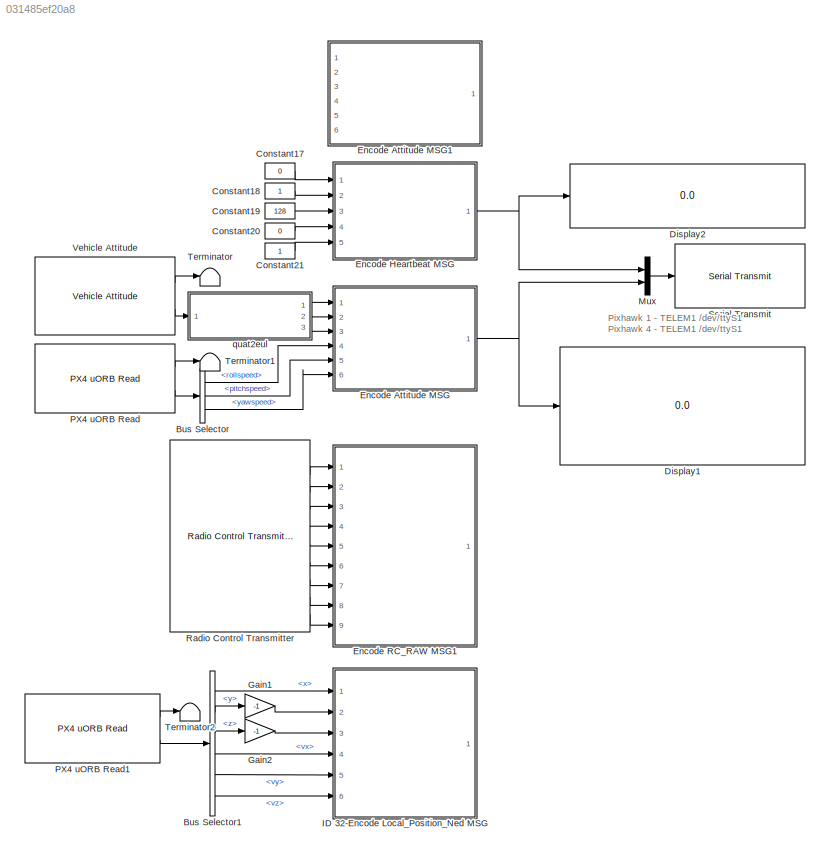
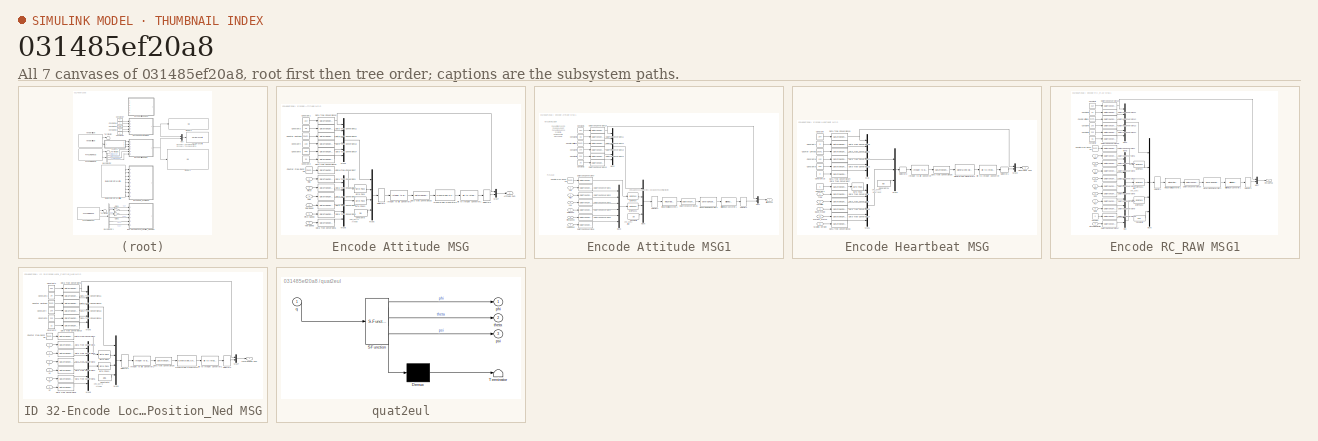
[diagram: thumbnail index - all 7 canvases of the model, root first then tree order]
MODEL slx_031485ef20a8
KIND model
CONFIG AbsTol = auto
CONFIG EnableMultiTasking = on
CONFIG FixedStep = 0.01
CONFIG MaxStep = auto
CONFIG MinStep = auto
CONFIG RelTol = 1e-3
CONFIG SampleTimeConstraint = Unconstrained
CONFIG Solver = FixedStepAuto
CONFIG SolverName = FixedStepAuto
CONFIG StartTime = 0.0
CONFIG StopTime = inf
BLOCK [BusSelector] Bus Selector
  OutputAsBus = off
  OutputSignals = rollspeed,pitchspeed,yawspeed
  Ports = [1, 3]
BLOCK [BusSelector] Bus Selector1
  OutputAsBus = off
  OutputSignals = x,y,z,vx,vy,vz
  Ports = [1, 6]
BLOCK [Constant] Constant17
  Value = 0
BLOCK [Constant] Constant18
BLOCK [Constant] Constant19
  Value = 128
BLOCK [Constant] Constant20
  Value = 0
BLOCK [Constant] Constant21
BLOCK [Display] Display1
  Decimation = 1
  Ports = [1]
BLOCK [Display] Display2
  Decimation = 1
  Ports = [1]
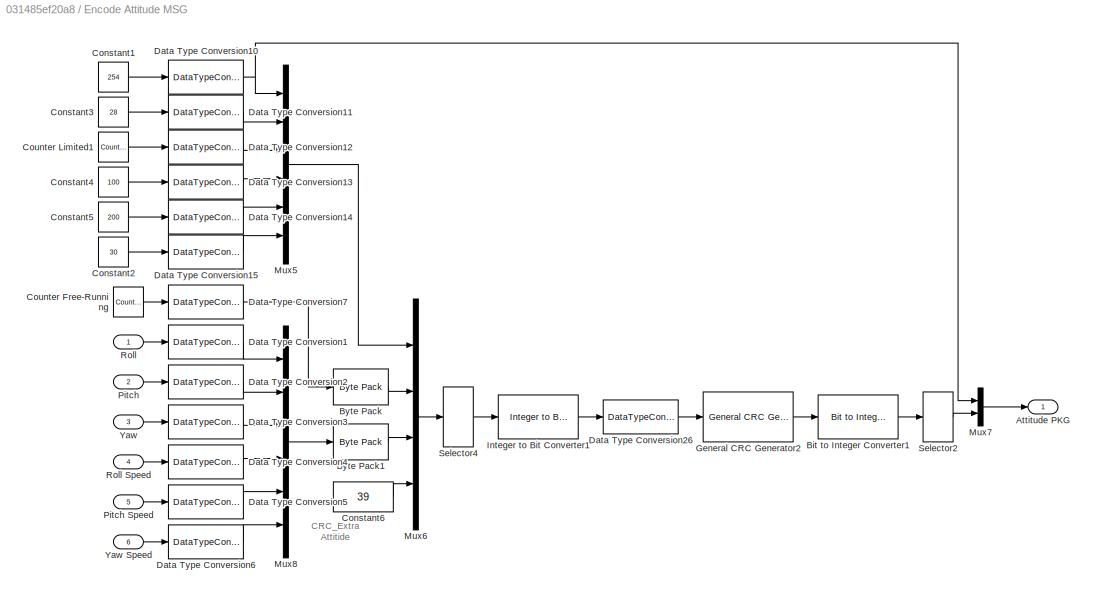
BLOCK [SubSystem] Encode Attitude MSG
  Ports = [6, 1]
  RequestExecContextInheritance = off
BLOCK [Outport] Encode Attitude MSG/Attitude PKG
  IconDisplay = Port number
  VectorParamsAs1DForOutWhenUnconnected = off
BLOCK [Reference] Encode Attitude MSG/Bit to Integer Converter1  REF=commutil2/Bit to Integer
Converter
  Ports = [1, 1]
  SourceBlock = commutil2/Bit to Integer\nConverter
  SourceProductBaseCode = CM
  SourceProductName = Communications Toolbox
  SourceType = Bit to Integer Converter
BLOCK [Reference] Encode Attitude MSG/Byte Pack  REF=etargetslib/Byte Pack
  Ports = [1, 1]
  SourceBlock = etargetslib/Byte Pack
  SourceProductBaseCode = ME
  SourceProductName = MATLAB Coder
  SourceType = Byte pack
BLOCK [Reference] Encode Attitude MSG/Byte Pack1  REF=etargetslib/Byte Pack
  Ports = [1, 1]
  SourceBlock = etargetslib/Byte Pack
  SourceProductBaseCode = ME
  SourceProductName = MATLAB Coder
  SourceType = Byte pack
BLOCK [Constant] Encode Attitude MSG/Constant1
  Value = 254
BLOCK [Constant] Encode Attitude MSG/Constant2
  Value = 30
BLOCK [Constant] Encode Attitude MSG/Constant3
  Value = 28
BLOCK [Constant] Encode Attitude MSG/Constant4
  Value = 100
BLOCK [Constant] Encode Attitude MSG/Constant5
  Value = 200
BLOCK [Constant] Encode Attitude MSG/Constant6
  OutDataTypeStr = uint8
  Value = 39
BLOCK [Reference] Encode Attitude MSG/Counter Free-Running  REF=simulink/Sources/Counter
Free-Running
  Ports = [0, 1]
  SourceBlock = simulink/Sources/Counter\nFree-Running
  SourceProductBaseCode = SL
  SourceProductName = Simulink
  SourceType = Counter Free-Running
BLOCK [Reference] Encode Attitude MSG/Counter Limited1  REF=simulink/Sources/Counter
Limited
  Ports = [0, 1]
  SourceBlock = simulink/Sources/Counter\nLimited
  SourceProductBaseCode = SL
  SourceProductName = Simulink
  SourceType = Counter Limited
BLOCK [DataTypeConversion] Encode Attitude MSG/Data Type Conversion1
  OutDataTypeStr = single
  RndMeth = Floor
  SaturateOnIntegerOverflow = off
BLOCK [DataTypeConversion] Encode Attitude MSG/Data Type Conversion10
  OutDataTypeStr = uint8
  RndMeth = Floor
  SaturateOnIntegerOverflow = off
BLOCK [DataTypeConversion] Encode Attitude MSG/Data Type Conversion11
  OutDataTypeStr = uint8
  RndMeth = Floor
  SaturateOnIntegerOverflow = off
BLOCK [DataTypeConversion] Encode Attitude MSG/Data Type Conversion12
  OutDataTypeStr = uint8
  RndMeth = Floor
  SaturateOnIntegerOverflow = off
BLOCK [DataTypeConversion] Encode Attitude MSG/Data Type Conversion13
  OutDataTypeStr = uint8
  RndMeth = Floor
  SaturateOnIntegerOverflow = off
BLOCK [DataTypeConversion] Encode Attitude MSG/Data Type Conversion14
  OutDataTypeStr = uint8
  RndMeth = Floor
  SaturateOnIntegerOverflow = off
BLOCK [DataTypeConversion] Encode Attitude MSG/Data Type Conversion15
  OutDataTypeStr = uint8
  RndMeth = Floor
  SaturateOnIntegerOverflow = off
BLOCK [DataTypeConversion] Encode Attitude MSG/Data Type Conversion2
  OutDataTypeStr = single
  RndMeth = Floor
  SaturateOnIntegerOverflow = off
BLOCK [DataTypeConversion] Encode Attitude MSG/Data Type Conversion26
  OutDataTypeStr = boolean
  RndMeth = Floor
  SaturateOnIntegerOverflow = off
BLOCK [DataTypeConversion] Encode Attitude MSG/Data Type Conversion3
  OutDataTypeStr = single
  RndMeth = Floor
  SaturateOnIntegerOverflow = off
BLOCK [DataTypeConversion] Encode Attitude MSG/Data Type Conversion4
  OutDataTypeStr = single
  RndMeth = Floor
  SaturateOnIntegerOverflow = off
BLOCK [DataTypeConversion] Encode Attitude MSG/Data Type Conversion5
  OutDataTypeStr = single
  RndMeth = Floor
  SaturateOnIntegerOverflow = off
BLOCK [DataTypeConversion] Encode Attitude MSG/Data Type Conversion6
  OutDataTypeStr = single
  RndMeth = Floor
  SaturateOnIntegerOverflow = off
BLOCK [DataTypeConversion] Encode Attitude MSG/Data Type Conversion7
  OutDataTypeStr = uint32
  RndMeth = Floor
  SaturateOnIntegerOverflow = off
BLOCK [Reference] Encode Attitude MSG/General CRC Generator2  REF=commcrc2/General CRC
Generator
  Ports = [1, 1]
  SourceBlock = commcrc2/General CRC\nGenerator
  SourceProductBaseCode = CM
  SourceProductName = Communications Toolbox
  SourceType = General CRC Generator
BLOCK [Reference] Encode Attitude MSG/Integer to Bit Converter1  REF=commutil2/Integer to Bit
Converter
  Ports = [1, 1]
  SourceBlock = commutil2/Integer to Bit\nConverter
  SourceProductBaseCode = CM
  SourceProductName = Communications Toolbox
  SourceType = Integer to Bit Converter
BLOCK [Mux] Encode Attitude MSG/Mux5
  DisplayOption = bar
  Inputs = 6
  Ports = [6, 1]
BLOCK [Mux] Encode Attitude MSG/Mux6
  DisplayOption = bar
  Ports = [4, 1]
BLOCK [Mux] Encode Attitude MSG/Mux7
  DisplayOption = bar
  Inputs = 2
  Ports = [2, 1]
BLOCK [Mux] Encode Attitude MSG/Mux8
  DisplayOption = bar
  Inputs = 6
  Ports = [6, 1]
BLOCK [Inport] Encode Attitude MSG/Pitch
  IconDisplay = Port number
  Port = 2
BLOCK [Inport] Encode Attitude MSG/Pitch Speed
  IconDisplay = Port number
  Port = 5
BLOCK [Inport] Encode Attitude MSG/Roll
  IconDisplay = Port number
BLOCK [Inport] Encode Attitude MSG/Roll Speed
  IconDisplay = Port number
  Port = 4
BLOCK [Selector] Encode Attitude MSG/Selector2
  IndexOptions = Index vector (dialog)
  Indices = [1:33 36 35]
  InputPortWidth = 36
  OutputSizes = 1
  Ports = [1, 1]
BLOCK [Selector] Encode Attitude MSG/Selector4
  IndexOptions = Index vector (dialog)
  Indices = [2:35]
  InputPortWidth = 35
  OutputSizes = 1
  Ports = [1, 1]
BLOCK [Inport] Encode Attitude MSG/Yaw
  IconDisplay = Port number
  Port = 3
BLOCK [Inport] Encode Attitude MSG/Yaw Speed
  IconDisplay = Port number
  Port = 6
BLOCK [SubSystem] Encode Attitude MSG1
  Commented = on
  Ports = [6, 1]
  RequestExecContextInheritance = off
BLOCK [Outport] Encode Attitude MSG1/Attitude PKG
  IconDisplay = Port number
  VectorParamsAs1DForOutWhenUnconnected = off
BLOCK [Reference] Encode Attitude MSG1/Bit to Integer Converter1  REF=commutil2/Bit to Integer
Converter
  Ports = [1, 1]
  SourceBlock = commutil2/Bit to Integer\nConverter
  SourceProductBaseCode = CM
  SourceProductName = Communications Toolbox
  SourceType = Bit to Integer Converter
BLOCK [Reference] Encode Attitude MSG1/Byte Pack  REF=etargetslib/Byte Pack
  Ports = [1, 1]
  SourceBlock = etargetslib/Byte Pack
  SourceProductBaseCode = ME
  SourceProductName = MATLAB Coder
  SourceType = Byte pack
BLOCK [Reference] Encode Attitude MSG1/Byte Pack1  REF=etargetslib/Byte Pack
  Ports = [1, 1]
  SourceBlock = etargetslib/Byte Pack
  SourceProductBaseCode = ME
  SourceProductName = MATLAB Coder
  SourceType = Byte pack
BLOCK [Constant] Encode Attitude MSG1/Constant1
  Value = 254
BLOCK [Constant] Encode Attitude MSG1/Constant2
  Value = 30
BLOCK [Constant] Encode Attitude MSG1/Constant3
  Value = 28
BLOCK [Constant] Encode Attitude MSG1/Constant4
  Value = 100
BLOCK [Constant] Encode Attitude MSG1/Constant5
  Value = 200
BLOCK [Constant] Encode Attitude MSG1/Constant6
  OutDataTypeStr = uint8
  Value = 39
BLOCK [Reference] Encode Attitude MSG1/Counter Free-Running  REF=simulink/Sources/Counter
Free-Running
  Ports = [0, 1]
  SourceBlock = simulink/Sources/Counter\nFree-Running
  SourceProductBaseCode = SL
  SourceProductName = Simulink
  SourceType = Counter Free-Running
BLOCK [Reference] Encode Attitude MSG1/Counter Limited1  REF=simulink/Sources/Counter
Limited
  Ports = [0, 1]
  SourceBlock = simulink/Sources/Counter\nLimited
  SourceProductBaseCode = SL
  SourceProductName = Simulink
  SourceType = Counter Limited
BLOCK [DataTypeConversion] Encode Attitude MSG1/Data Type Conversion1
  OutDataTypeStr = single
  RndMeth = Floor
  SaturateOnIntegerOverflow = off
BLOCK [DataTypeConversion] Encode Attitude MSG1/Data Type Conversion10
  OutDataTypeStr = uint8
  RndMeth = Floor
  SaturateOnIntegerOverflow = off
BLOCK [DataTypeConversion] Encode Attitude MSG1/Data Type Conversion11
  OutDataTypeStr = uint8
  RndMeth = Floor
  SaturateOnIntegerOverflow = off
BLOCK [DataTypeConversion] Encode Attitude MSG1/Data Type Conversion12
  OutDataTypeStr = uint8
  RndMeth = Floor
  SaturateOnIntegerOverflow = off
BLOCK [DataTypeConversion] Encode Attitude MSG1/Data Type Conversion13
  OutDataTypeStr = uint8
  RndMeth = Floor
  SaturateOnIntegerOverflow = off
BLOCK [DataTypeConversion] Encode Attitude MSG1/Data Type Conversion14
  OutDataTypeStr = uint8
  RndMeth = Floor
  SaturateOnIntegerOverflow = off
BLOCK [DataTypeConversion] Encode Attitude MSG1/Data Type Conversion15
  OutDataTypeStr = uint8
  RndMeth = Floor
  SaturateOnIntegerOverflow = off
BLOCK [DataTypeConversion] Encode Attitude MSG1/Data Type Conversion2
  OutDataTypeStr = single
  RndMeth = Floor
  SaturateOnIntegerOverflow = off
BLOCK [DataTypeConversion] Encode Attitude MSG1/Data Type Conversion26
  OutDataTypeStr = boolean
  RndMeth = Floor
  SaturateOnIntegerOverflow = off
BLOCK [DataTypeConversion] Encode Attitude MSG1/Data Type Conversion3
  OutDataTypeStr = single
  RndMeth = Floor
  SaturateOnIntegerOverflow = off
BLOCK [DataTypeConversion] Encode Attitude MSG1/Data Type Conversion4
  OutDataTypeStr = single
  RndMeth = Floor
  SaturateOnIntegerOverflow = off
BLOCK [DataTypeConversion] Encode Attitude MSG1/Data Type Conversion5
  OutDataTypeStr = single
  RndMeth = Floor
  SaturateOnIntegerOverflow = off
BLOCK [DataTypeConversion] Encode Attitude MSG1/Data Type Conversion6
  OutDataTypeStr = single
  RndMeth = Floor
  SaturateOnIntegerOverflow = off
BLOCK [DataTypeConversion] Encode Attitude MSG1/Data Type Conversion7
  OutDataTypeStr = uint32
  RndMeth = Floor
  SaturateOnIntegerOverflow = off
BLOCK [Reference] Encode Attitude MSG1/General CRC Generator2  REF=commcrc2/General CRC
Generator
  Ports = [1, 1]
  SourceBlock = commcrc2/General CRC\nGenerator
  SourceProductBaseCode = CM
  SourceProductName = Communications Toolbox
  SourceType = General CRC Generator
BLOCK [Reference] Encode Attitude MSG1/Integer to Bit Converter1  REF=commutil2/Integer to Bit
Converter
  Ports = [1, 1]
  SourceBlock = commutil2/Integer to Bit\nConverter
  SourceProductBaseCode = CM
  SourceProductName = Communications Toolbox
  SourceType = Integer to Bit Converter
BLOCK [Mux] Encode Attitude MSG1/Mux5
  DisplayOption = bar
  Inputs = 6
  Ports = [6, 1]
BLOCK [Mux] Encode Attitude MSG1/Mux6
  DisplayOption = bar
  Ports = [4, 1]
BLOCK [Mux] Encode Attitude MSG1/Mux7
  DisplayOption = bar
  Inputs = 2
  Ports = [2, 1]
BLOCK [Mux] Encode Attitude MSG1/Mux8
  DisplayOption = bar
  Inputs = 6
  Ports = [6, 1]
BLOCK [Inport] Encode Attitude MSG1/Pitch
  IconDisplay = Port number
  Port = 2
BLOCK [Inport] Encode Attitude MSG1/Pitch Speed
  IconDisplay = Port number
  Port = 5
BLOCK [Inport] Encode Attitude MSG1/Roll
  IconDisplay = Port number
BLOCK [Inport] Encode Attitude MSG1/Roll Speed
  IconDisplay = Port number
  Port = 4
BLOCK [Selector] Encode Attitude MSG1/Selector2
  IndexOptions = Index vector (dialog)
  Indices = [1:33 36 35]
  InputPortWidth = 36
  OutputSizes = 1
  Ports = [1, 1]
BLOCK [Selector] Encode Attitude MSG1/Selector4
  IndexOptions = Index vector (dialog)
  Indices = [2:35]
  InputPortWidth = 35
  OutputSizes = 1
  Ports = [1, 1]
BLOCK [Inport] Encode Attitude MSG1/Yaw
  IconDisplay = Port number
  Port = 3
BLOCK [Inport] Encode Attitude MSG1/Yaw Speed
  IconDisplay = Port number
  Port = 6
BLOCK [SubSystem] Encode Heartbeat MSG
  Ports = [5, 1]
  RequestExecContextInheritance = off
BLOCK [Inport] Encode Heartbeat MSG/Autopilot
  IconDisplay = Port number
  Port = 2
BLOCK [Inport] Encode Heartbeat MSG/Base_mode
  IconDisplay = Port number
  Port = 3
BLOCK [Reference] Encode Heartbeat MSG/Bit to Integer Converter  REF=commutil2/Bit to Integer
Converter
  Ports = [1, 1]
  SourceBlock = commutil2/Bit to Integer\nConverter
  SourceProductBaseCode = CM
  SourceProductName = Communications Toolbox
  SourceType = Bit to Integer Converter
BLOCK [Reference] Encode Heartbeat MSG/Byte Pack  REF=etargetslib/Byte Pack
  Ports = [1, 1]
  SourceBlock = etargetslib/Byte Pack
  SourceProductBaseCode = ME
  SourceProductName = MATLAB Coder
  SourceType = Byte pack
BLOCK [Constant] Encode Heartbeat MSG/Constant
  Value = 254
BLOCK [Constant] Encode Heartbeat MSG/Constant1
BLOCK [Constant] Encode Heartbeat MSG/Constant16
  Value = 0
BLOCK [Constant] Encode Heartbeat MSG/Constant24
  OutDataTypeStr = uint8
  Value = 50
BLOCK [Constant] Encode Heartbeat MSG/Constant7
  Value = 9
BLOCK [Constant] Encode Heartbeat MSG/Constant8
  Value = 100
BLOCK [Constant] Encode Heartbeat MSG/Constant9
  Value = 200
BLOCK [Reference] Encode Heartbeat MSG/Counter Limited  REF=simulink/Sources/Counter
Limited
  Ports = [0, 1]
  SourceBlock = simulink/Sources/Counter\nLimited
  SourceProductBaseCode = SL
  SourceProductName = Simulink
  SourceType = Counter Limited
BLOCK [DataTypeConversion] Encode Heartbeat MSG/Data Type Conversion16
  OutDataTypeStr = uint8
  RndMeth = Floor
  SaturateOnIntegerOverflow = off
BLOCK [DataTypeConversion] Encode Heartbeat MSG/Data Type Conversion17
  OutDataTypeStr = uint8
  RndMeth = Floor
  SaturateOnIntegerOverflow = off
BLOCK [DataTypeConversion] Encode Heartbeat MSG/Data Type Conversion18
  OutDataTypeStr = uint8
  RndMeth = Floor
  SaturateOnIntegerOverflow = off
BLOCK [DataTypeConversion] Encode Heartbeat MSG/Data Type Conversion19
  OutDataTypeStr = uint8
  RndMeth = Floor
  SaturateOnIntegerOverflow = off
BLOCK [DataTypeConversion] Encode Heartbeat MSG/Data Type Conversion20
  OutDataTypeStr = uint8
  RndMeth = Floor
  SaturateOnIntegerOverflow = off
BLOCK [DataTypeConversion] Encode Heartbeat MSG/Data Type Conversion21
  OutDataTypeStr = uint8
  RndMeth = Floor
  SaturateOnIntegerOverflow = off
BLOCK [DataTypeConversion] Encode Heartbeat MSG/Data Type Conversion22
  OutDataTypeStr = uint8
  RndMeth = Floor
  SaturateOnIntegerOverflow = off
BLOCK [DataTypeConversion] Encode Heartbeat MSG/Data Type Conversion23
  OutDataTypeStr = uint8
  RndMeth = Floor
  SaturateOnIntegerOverflow = off
BLOCK [DataTypeConversion] Encode Heartbeat MSG/Data Type Conversion24
  OutDataTypeStr = uint8
  RndMeth = Floor
  SaturateOnIntegerOverflow = off
BLOCK [DataTypeConversion] Encode Heartbeat MSG/Data Type Conversion25
  OutDataTypeStr = boolean
  RndMeth = Floor
  SaturateOnIntegerOverflow = off
BLOCK [DataTypeConversion] Encode Heartbeat MSG/Data Type Conversion7
  OutDataTypeStr = uint32
  RndMeth = Floor
  SaturateOnIntegerOverflow = off
BLOCK [DataTypeConversion] Encode Heartbeat MSG/Data Type Conversion8
  OutDataTypeStr = uint8
  RndMeth = Floor
  SaturateOnIntegerOverflow = off
BLOCK [DataTypeConversion] Encode Heartbeat MSG/Data Type Conversion9
  OutDataTypeStr = uint8
  RndMeth = Floor
  SaturateOnIntegerOverflow = off
BLOCK [Reference] Encode Heartbeat MSG/General CRC Generator1  REF=commcrc2/General CRC
Generator
  Ports = [1, 1]
  SourceBlock = commcrc2/General CRC\nGenerator
  SourceProductBaseCode = CM
  SourceProductName = Communications Toolbox
  SourceType = General CRC Generator
BLOCK [Outport] Encode Heartbeat MSG/Heartbeat PKG
  IconDisplay = Port number
  VectorParamsAs1DForOutWhenUnconnected = off
BLOCK [Reference] Encode Heartbeat MSG/Integer to Bit Converter  REF=commutil2/Integer to Bit
Converter
  Ports = [1, 1]
  SourceBlock = commutil2/Integer to Bit\nConverter
  SourceProductBaseCode = CM
  SourceProductName = Communications Toolbox
  SourceType = Integer to Bit Converter
BLOCK [Inport] Encode Heartbeat MSG/Mavlink Version
  IconDisplay = Port number
  Port = 5
BLOCK [Mux] Encode Heartbeat MSG/Mux
  DisplayOption = bar
  Inputs = 6
  Ports = [6, 1]
BLOCK [Mux] Encode Heartbeat MSG/Mux1
  DisplayOption = bar
  Inputs = 6
  Ports = [6, 1]
BLOCK [Mux] Encode Heartbeat MSG/Mux2
  DisplayOption = bar
  Inputs = 3
  Ports = [3, 1]
BLOCK [Mux] Encode Heartbeat MSG/Mux3
  DisplayOption = bar
  Inputs = 2
  Ports = [2, 1]
BLOCK [Selector] Encode Heartbeat MSG/Selector1
  IndexOptions = Index vector (dialog)
  Indices = [1:14 17 16]
  InputPortWidth = 17
  OutputSizes = 1
  Ports = [1, 1]
BLOCK [Selector] Encode Heartbeat MSG/Selector3
  IndexOptions = Index vector (dialog)
  Indices = [2:16]
  InputPortWidth = 16
  OutputSizes = 1
  Ports = [1, 1]
BLOCK [Inport] Encode Heartbeat MSG/System_Status
  IconDisplay = Port number
  Port = 4
BLOCK [Inport] Encode Heartbeat MSG/Type
  IconDisplay = Port number
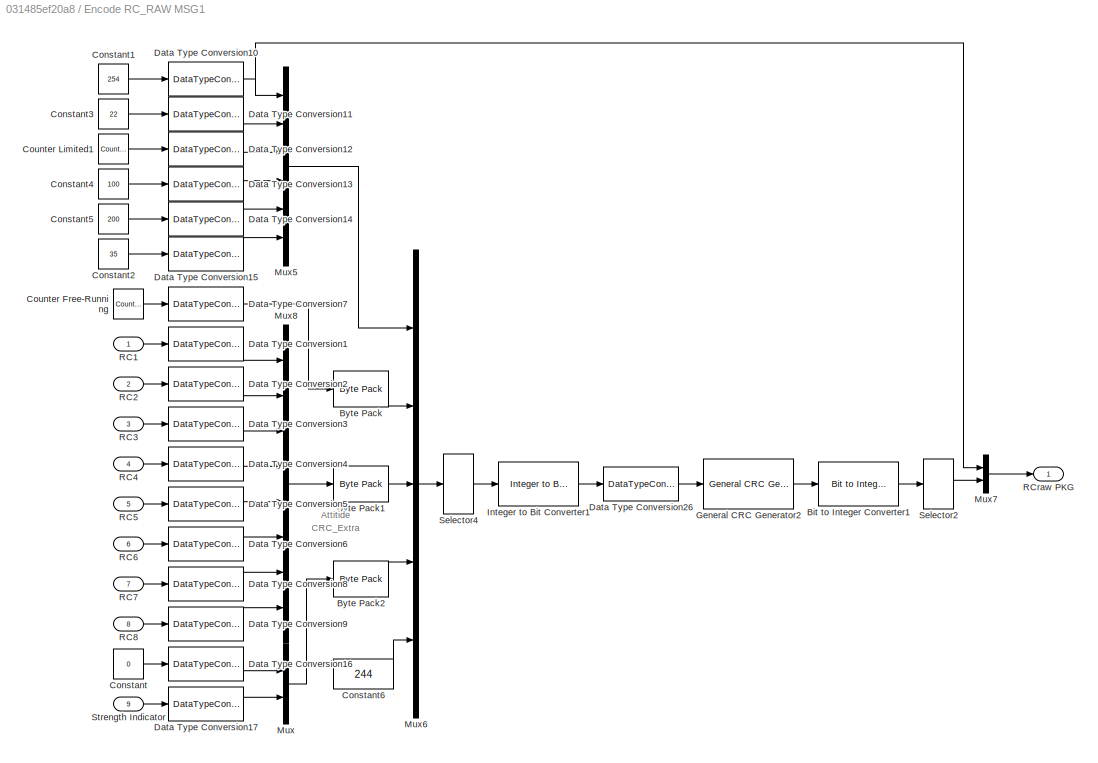
BLOCK [SubSystem] Encode RC_RAW MSG1
  Ports = [9, 1]
  RequestExecContextInheritance = off
BLOCK [Reference] Encode RC_RAW MSG1/Bit to Integer Converter1  REF=commutil2/Bit to Integer
Converter
  Ports = [1, 1]
  SourceBlock = commutil2/Bit to Integer\nConverter
  SourceProductBaseCode = CM
  SourceProductName = Communications Toolbox
  SourceType = Bit to Integer Converter
BLOCK [Reference] Encode RC_RAW MSG1/Byte Pack  REF=etargetslib/Byte Pack
  Ports = [1, 1]
  SourceBlock = etargetslib/Byte Pack
  SourceProductBaseCode = ME
  SourceProductName = MATLAB Coder
  SourceType = Byte pack
BLOCK [Reference] Encode RC_RAW MSG1/Byte Pack1  REF=etargetslib/Byte Pack
  Ports = [1, 1]
  SourceBlock = etargetslib/Byte Pack
  SourceProductBaseCode = ME
  SourceProductName = MATLAB Coder
  SourceType = Byte pack
BLOCK [Reference] Encode RC_RAW MSG1/Byte Pack2  REF=etargetslib/Byte Pack
  Ports = [1, 1]
  SourceBlock = etargetslib/Byte Pack
  SourceProductBaseCode = ME
  SourceProductName = MATLAB Coder
  SourceType = Byte pack
BLOCK [Constant] Encode RC_RAW MSG1/Constant
  Value = 0
BLOCK [Constant] Encode RC_RAW MSG1/Constant1
  Value = 254
BLOCK [Constant] Encode RC_RAW MSG1/Constant2
  Value = 35
BLOCK [Constant] Encode RC_RAW MSG1/Constant3
  Value = 22
BLOCK [Constant] Encode RC_RAW MSG1/Constant4
  Value = 100
BLOCK [Constant] Encode RC_RAW MSG1/Constant5
  Value = 200
BLOCK [Constant] Encode RC_RAW MSG1/Constant6
  OutDataTypeStr = uint8
  Value = 244
BLOCK [Reference] Encode RC_RAW MSG1/Counter Free-Running  REF=simulink/Sources/Counter
Free-Running
  Ports = [0, 1]
  SourceBlock = simulink/Sources/Counter\nFree-Running
  SourceProductBaseCode = SL
  SourceProductName = Simulink
  SourceType = Counter Free-Running
BLOCK [Reference] Encode RC_RAW MSG1/Counter Limited1  REF=simulink/Sources/Counter
Limited
  Ports = [0, 1]
  SourceBlock = simulink/Sources/Counter\nLimited
  SourceProductBaseCode = SL
  SourceProductName = Simulink
  SourceType = Counter Limited
BLOCK [DataTypeConversion] Encode RC_RAW MSG1/Data Type Conversion1
  OutDataTypeStr = uint16
  RndMeth = Floor
  SaturateOnIntegerOverflow = off
BLOCK [DataTypeConversion] Encode RC_RAW MSG1/Data Type Conversion10
  OutDataTypeStr = uint8
  RndMeth = Floor
  SaturateOnIntegerOverflow = off
BLOCK [DataTypeConversion] Encode RC_RAW MSG1/Data Type Conversion11
  OutDataTypeStr = uint8
  RndMeth = Floor
  SaturateOnIntegerOverflow = off
BLOCK [DataTypeConversion] Encode RC_RAW MSG1/Data Type Conversion12
  OutDataTypeStr = uint8
  RndMeth = Floor
  SaturateOnIntegerOverflow = off
BLOCK [DataTypeConversion] Encode RC_RAW MSG1/Data Type Conversion13
  OutDataTypeStr = uint8
  RndMeth = Floor
  SaturateOnIntegerOverflow = off
BLOCK [DataTypeConversion] Encode RC_RAW MSG1/Data Type Conversion14
  OutDataTypeStr = uint8
  RndMeth = Floor
  SaturateOnIntegerOverflow = off
BLOCK [DataTypeConversion] Encode RC_RAW MSG1/Data Type Conversion15
  OutDataTypeStr = uint8
  RndMeth = Floor
  SaturateOnIntegerOverflow = off
BLOCK [DataTypeConversion] Encode RC_RAW MSG1/Data Type Conversion16
  OutDataTypeStr = uint8
  RndMeth = Floor
  SaturateOnIntegerOverflow = off
BLOCK [DataTypeConversion] Encode RC_RAW MSG1/Data Type Conversion17
  OutDataTypeStr = uint8
  RndMeth = Floor
  SaturateOnIntegerOverflow = off
BLOCK [DataTypeConversion] Encode RC_RAW MSG1/Data Type Conversion2
  OutDataTypeStr = uint16
  RndMeth = Floor
  SaturateOnIntegerOverflow = off
BLOCK [DataTypeConversion] Encode RC_RAW MSG1/Data Type Conversion26
  OutDataTypeStr = boolean
  RndMeth = Floor
  SaturateOnIntegerOverflow = off
BLOCK [DataTypeConversion] Encode RC_RAW MSG1/Data Type Conversion3
  OutDataTypeStr = uint16
  RndMeth = Floor
  SaturateOnIntegerOverflow = off
BLOCK [DataTypeConversion] Encode RC_RAW MSG1/Data Type Conversion4
  OutDataTypeStr = uint16
  RndMeth = Floor
  SaturateOnIntegerOverflow = off
BLOCK [DataTypeConversion] Encode RC_RAW MSG1/Data Type Conversion5
  OutDataTypeStr = uint16
  RndMeth = Floor
  SaturateOnIntegerOverflow = off
BLOCK [DataTypeConversion] Encode RC_RAW MSG1/Data Type Conversion6
  OutDataTypeStr = uint16
  RndMeth = Floor
  SaturateOnIntegerOverflow = off
BLOCK [DataTypeConversion] Encode RC_RAW MSG1/Data Type Conversion7
  OutDataTypeStr = uint32
  RndMeth = Floor
  SaturateOnIntegerOverflow = off
BLOCK [DataTypeConversion] Encode RC_RAW MSG1/Data Type Conversion8
  OutDataTypeStr = uint16
  RndMeth = Floor
  SaturateOnIntegerOverflow = off
BLOCK [DataTypeConversion] Encode RC_RAW MSG1/Data Type Conversion9
  OutDataTypeStr = uint16
  RndMeth = Floor
  SaturateOnIntegerOverflow = off
BLOCK [Reference] Encode RC_RAW MSG1/General CRC Generator2  REF=commcrc2/General CRC
Generator
  Ports = [1, 1]
  SourceBlock = commcrc2/General CRC\nGenerator
  SourceProductBaseCode = CM
  SourceProductName = Communications Toolbox
  SourceType = General CRC Generator
BLOCK [Reference] Encode RC_RAW MSG1/Integer to Bit Converter1  REF=commutil2/Integer to Bit
Converter
  Ports = [1, 1]
  SourceBlock = commutil2/Integer to Bit\nConverter
  SourceProductBaseCode = CM
  SourceProductName = Communications Toolbox
  SourceType = Integer to Bit Converter
BLOCK [Mux] Encode RC_RAW MSG1/Mux
  DisplayOption = bar
  Inputs = 2
  Ports = [2, 1]
BLOCK [Mux] Encode RC_RAW MSG1/Mux5
  DisplayOption = bar
  Inputs = 6
  Ports = [6, 1]
BLOCK [Mux] Encode RC_RAW MSG1/Mux6
  DisplayOption = bar
  Inputs = 5
  Ports = [5, 1]
BLOCK [Mux] Encode RC_RAW MSG1/Mux7
  DisplayOption = bar
  Inputs = 2
  Ports = [2, 1]
BLOCK [Mux] Encode RC_RAW MSG1/Mux8
  DisplayOption = bar
  Inputs = 8
  Ports = [8, 1]
BLOCK [Inport] Encode RC_RAW MSG1/RC1
  IconDisplay = Port number
BLOCK [Inport] Encode RC_RAW MSG1/RC2
  IconDisplay = Port number
  Port = 2
BLOCK [Inport] Encode RC_RAW MSG1/RC3
  IconDisplay = Port number
  Port = 3
BLOCK [Inport] Encode RC_RAW MSG1/RC4
  IconDisplay = Port number
  Port = 4
BLOCK [Inport] Encode RC_RAW MSG1/RC5
  IconDisplay = Port number
  Port = 5
BLOCK [Inport] Encode RC_RAW MSG1/RC6 
  IconDisplay = Port number
  Port = 6
BLOCK [Inport] Encode RC_RAW MSG1/RC7
  IconDisplay = Port number
  Port = 7
BLOCK [Inport] Encode RC_RAW MSG1/RC8
  IconDisplay = Port number
  Port = 8
BLOCK [Outport] Encode RC_RAW MSG1/RCraw PKG
  IconDisplay = Port number
  VectorParamsAs1DForOutWhenUnconnected = off
BLOCK [Selector] Encode RC_RAW MSG1/Selector2
  IndexOptions = Index vector (dialog)
  Indices = [1:28 30 29]
  InputPortWidth = 30
  OutputSizes = 1
  Ports = [1, 1]
BLOCK [Selector] Encode RC_RAW MSG1/Selector4
  IndexOptions = Index vector (dialog)
  Indices = [2:29]
  InputPortWidth = 29
  OutputSizes = 1
  Ports = [1, 1]
BLOCK [Inport] Encode RC_RAW MSG1/Strength Indicator
  IconDisplay = Port number
  Port = 9
BLOCK [Gain] Gain1
  Gain = -1
  OutDataTypeStr = Inherit: Inherit via internal rule
  ParamDataTypeStr = Inherit: Inherit via internal rule
  SaturateOnIntegerOverflow = off
BLOCK [Gain] Gain2
  Gain = -1
  OutDataTypeStr = Inherit: Inherit via internal rule
  ParamDataTypeStr = Inherit: Inherit via internal rule
  SaturateOnIntegerOverflow = off
BLOCK [SubSystem] ID 32-Encode Local_Position_Ned MSG
  Ports = [6, 1]
  RequestExecContextInheritance = off
BLOCK [Reference] ID 32-Encode Local_Position_Ned MSG/Bit to Integer Converter1  REF=commutil2/Bit to Integer
Converter
  Ports = [1, 1]
  SourceBlock = commutil2/Bit to Integer\nConverter
  SourceProductBaseCode = CM
  SourceProductName = Communications Toolbox
  SourceType = Bit to Integer Converter
BLOCK [Reference] ID 32-Encode Local_Position_Ned MSG/Byte Pack  REF=etargetslib/Byte Pack
  Ports = [1, 1]
  SourceBlock = etargetslib/Byte Pack
  SourceProductBaseCode = ME
  SourceProductName = MATLAB Coder
  SourceType = Byte pack
BLOCK [Reference] ID 32-Encode Local_Position_Ned MSG/Byte Pack1  REF=etargetslib/Byte Pack
  Ports = [1, 1]
  SourceBlock = etargetslib/Byte Pack
  SourceProductBaseCode = ME
  SourceProductName = MATLAB Coder
  SourceType = Byte pack
BLOCK [Constant] ID 32-Encode Local_Position_Ned MSG/Constant1
  Value = 254
BLOCK [Constant] ID 32-Encode Local_Position_Ned MSG/Constant2
  Value = 32
BLOCK [Constant] ID 32-Encode Local_Position_Ned MSG/Constant3
  Value = 28
BLOCK [Constant] ID 32-Encode Local_Position_Ned MSG/Constant4
  Value = 100
BLOCK [Constant] ID 32-Encode Local_Position_Ned MSG/Constant5
  Value = 200
BLOCK [Constant] ID 32-Encode Local_Position_Ned MSG/Constant6
  OutDataTypeStr = uint8
  Value = 185
BLOCK [Reference] ID 32-Encode Local_Position_Ned MSG/Counter Free-Running  REF=simulink/Sources/Counter
Free-Running
  Ports = [0, 1]
  SourceBlock = simulink/Sources/Counter\nFree-Running
  SourceProductBaseCode = SL
  SourceProductName = Simulink
  SourceType = Counter Free-Running
BLOCK [Reference] ID 32-Encode Local_Position_Ned MSG/Counter Limited1  REF=simulink/Sources/Counter
Limited
  Ports = [0, 1]
  SourceBlock = simulink/Sources/Counter\nLimited
  SourceProductBaseCode = SL
  SourceProductName = Simulink
  SourceType = Counter Limited
BLOCK [DataTypeConversion] ID 32-Encode Local_Position_Ned MSG/Data Type Conversion1
  OutDataTypeStr = single
  RndMeth = Floor
  SaturateOnIntegerOverflow = off
BLOCK [DataTypeConversion] ID 32-Encode Local_Position_Ned MSG/Data Type Conversion10
  OutDataTypeStr = uint8
  RndMeth = Floor
  SaturateOnIntegerOverflow = off
BLOCK [DataTypeConversion] ID 32-Encode Local_Position_Ned MSG/Data Type Conversion11
  OutDataTypeStr = uint8
  RndMeth = Floor
  SaturateOnIntegerOverflow = off
BLOCK [DataTypeConversion] ID 32-Encode Local_Position_Ned MSG/Data Type Conversion12
  OutDataTypeStr = uint8
  RndMeth = Floor
  SaturateOnIntegerOverflow = off
BLOCK [DataTypeConversion] ID 32-Encode Local_Position_Ned MSG/Data Type Conversion13
  OutDataTypeStr = uint8
  RndMeth = Floor
  SaturateOnIntegerOverflow = off
BLOCK [DataTypeConversion] ID 32-Encode Local_Position_Ned MSG/Data Type Conversion14
  OutDataTypeStr = uint8
  RndMeth = Floor
  SaturateOnIntegerOverflow = off
BLOCK [DataTypeConversion] ID 32-Encode Local_Position_Ned MSG/Data Type Conversion15
  OutDataTypeStr = uint8
  RndMeth = Floor
  SaturateOnIntegerOverflow = off
BLOCK [DataTypeConversion] ID 32-Encode Local_Position_Ned MSG/Data Type Conversion2
  OutDataTypeStr = single
  RndMeth = Floor
  SaturateOnIntegerOverflow = off
BLOCK [DataTypeConversion] ID 32-Encode Local_Position_Ned MSG/Data Type Conversion26
  OutDataTypeStr = boolean
  RndMeth = Floor
  SaturateOnIntegerOverflow = off
BLOCK [DataTypeConversion] ID 32-Encode Local_Position_Ned MSG/Data Type Conversion3
  OutDataTypeStr = single
  RndMeth = Floor
  SaturateOnIntegerOverflow = off
BLOCK [DataTypeConversion] ID 32-Encode Local_Position_Ned MSG/Data Type Conversion4
  OutDataTypeStr = single
  RndMeth = Floor
  SaturateOnIntegerOverflow = off
BLOCK [DataTypeConversion] ID 32-Encode Local_Position_Ned MSG/Data Type Conversion5
  OutDataTypeStr = single
  RndMeth = Floor
  SaturateOnIntegerOverflow = off
BLOCK [DataTypeConversion] ID 32-Encode Local_Position_Ned MSG/Data Type Conversion6
  OutDataTypeStr = single
  RndMeth = Floor
  SaturateOnIntegerOverflow = off
BLOCK [DataTypeConversion] ID 32-Encode Local_Position_Ned MSG/Data Type Conversion7
  OutDataTypeStr = uint32
  RndMeth = Floor
  SaturateOnIntegerOverflow = off
BLOCK [Reference] ID 32-Encode Local_Position_Ned MSG/General CRC Generator2  REF=commcrc2/General CRC
Generator
  Ports = [1, 1]
  SourceBlock = commcrc2/General CRC\nGenerator
  SourceProductBaseCode = CM
  SourceProductName = Communications Toolbox
  SourceType = General CRC Generator
BLOCK [Reference] ID 32-Encode Local_Position_Ned MSG/Integer to Bit Converter1  REF=commutil2/Integer to Bit
Converter
  Ports = [1, 1]
  SourceBlock = commutil2/Integer to Bit\nConverter
  SourceProductBaseCode = CM
  SourceProductName = Communications Toolbox
  SourceType = Integer to Bit Converter
BLOCK [Outport] ID 32-Encode Local_Position_Ned MSG/Local Position PKG
  IconDisplay = Port number
  VectorParamsAs1DForOutWhenUnconnected = off
BLOCK [Mux] ID 32-Encode Local_Position_Ned MSG/Mux5
  DisplayOption = bar
  Inputs = 6
  Ports = [6, 1]
BLOCK [Mux] ID 32-Encode Local_Position_Ned MSG/Mux6
  DisplayOption = bar
  Ports = [4, 1]
BLOCK [Mux] ID 32-Encode Local_Position_Ned MSG/Mux7
  DisplayOption = bar
  Inputs = 2
  Ports = [2, 1]
BLOCK [Mux] ID 32-Encode Local_Position_Ned MSG/Mux8
  DisplayOption = bar
  Inputs = 6
  Ports = [6, 1]
BLOCK [Selector] ID 32-Encode Local_Position_Ned MSG/Selector2
  IndexOptions = Index vector (dialog)
  Indices = [1:33 36 35]
  InputPortWidth = 36
  OutputSizes = 1
  Ports = [1, 1]
BLOCK [Selector] ID 32-Encode Local_Position_Ned MSG/Selector4
  IndexOptions = Index vector (dialog)
  Indices = [2:35]
  InputPortWidth = 35
  OutputSizes = 1
  Ports = [1, 1]
BLOCK [Inport] ID 32-Encode Local_Position_Ned MSG/Vx
  IconDisplay = Port number
  Port = 4
BLOCK [Inport] ID 32-Encode Local_Position_Ned MSG/Vy
  IconDisplay = Port number
  Port = 5
BLOCK [Inport] ID 32-Encode Local_Position_Ned MSG/Vz
  IconDisplay = Port number
  Port = 6
BLOCK [Inport] ID 32-Encode Local_Position_Ned MSG/X
  IconDisplay = Port number
BLOCK [Inport] ID 32-Encode Local_Position_Ned MSG/Y
  IconDisplay = Port number
  Port = 2
BLOCK [Inport] ID 32-Encode Local_Position_Ned MSG/Z
  IconDisplay = Port number
  Port = 3
BLOCK [Mux] Mux
  DisplayOption = bar
  Inputs = 2
  Ports = [2, 1]
BLOCK [Reference] PX4 uORB Read  REF=px4uORBlib/PX4 uORB Read
  Ports = [0, 2]
  SourceBlock = px4uORBlib/PX4 uORB Read
  SourceProductBaseCode = PX4AUTOPILOTS
  SourceProductName = Embedded Coder Support Package for PX4 Autopilots
  SourceType = PX4 uORB Read
BLOCK [Reference] PX4 uORB Read1  REF=px4uORBlib/PX4 uORB Read
  Ports = [0, 2]
  SourceBlock = px4uORBlib/PX4 uORB Read
  SourceProductBaseCode = PX4AUTOPILOTS
  SourceProductName = Embedded Coder Support Package for PX4 Autopilots
  SourceType = PX4 uORB Read
BLOCK [Reference] Radio Control Transmitter  REF=px4Sensorslib/Radio Control Transmitter
  Ports = [0, 10]
  SourceBlock = px4Sensorslib/Radio Control Transmitter
  SourceProductName = Embedded Coder Support Package for PX4 Autopilots
  SourceType = PX4 Radio Control Transmitter
BLOCK [Reference] Serial Transmit  REF=px4lib/Serial Transmit
  Ports = [1]
  SourceBlock = px4lib/Serial Transmit
  SourceProductBaseCode = PX4AUTOPILOTS
  SourceProductName = Embedded Coder Support Package for PX4 Autopilots
  SourceType = PX4 Serial Transmit
BLOCK [Terminator] Terminator
BLOCK [Terminator] Terminator1
BLOCK [Terminator] Terminator2
BLOCK [Reference] Vehicle Attitude  REF=px4Sensorslib/Vehicle Attitude
  Ports = [0, 2]
  SourceBlock = px4Sensorslib/Vehicle Attitude
  SourceProductName = Embedded Coder Support Package for PX4 Autopilots
  SourceType = PX4 Vehicle Attitude
BLOCK [SubSystem] quat2eul
  ErrorFcn = Stateflow.Translate.translate
  PermitHierarchicalResolution = ExplicitOnly
  Ports = [1, 3]
  RequestExecContextInheritance = off
  SFBlockType = MATLAB Function
  TreatAsAtomicUnit = on
BLOCK [Demux] quat2eul/ Demux 
  Outputs = 1
  Ports = [1, 1]
BLOCK [S-Function] quat2eul/ SFunction 
  EnableBusSupport = off
  FunctionName = sf_sfun
  PortCounts = [1 4]
  Ports = [1, 4]
  SFcnIsStateOwnerBlock = off
  SFunctionDeploymentMode = off
  Tag = Stateflow S-Function 10
BLOCK [Terminator] quat2eul/ Terminator 
BLOCK [Outport] quat2eul/phi
  IconDisplay = Port number
  VectorParamsAs1DForOutWhenUnconnected = off
BLOCK [Outport] quat2eul/psi
  IconDisplay = Port number
  Port = 3
  VectorParamsAs1DForOutWhenUnconnected = off
BLOCK [Inport] quat2eul/q
  IconDisplay = Port number
BLOCK [Outport] quat2eul/theta
  IconDisplay = Port number
  Port = 2
  VectorParamsAs1DForOutWhenUnconnected = off
ANNOTATION (root): Pixhawk 1 - TELEM1 /dev/ttyS1 Pixhawk 4 - TELEM1 /dev/ttyS1
ANNOTATION Encode Attitude MSG: CRC_Extra Attitide
ANNOTATION Encode Attitude MSG1: Packet Start (0xFE) Payload Lenght Packet Sequence System ID Component ID Message ID
ANNOTATION Encode Attitude MSG1: CRC 16 / Checksum (2 bytes) (Excludes Packet Start Byte)
ANNOTATION Encode Attitude MSG1: CRC_Extra Attitide
ANNOTATION Encode Attitude MSG1: MAVLINK HEADER
ANNOTATION Encode Attitude MSG1: PAYLOAD
ANNOTATION Encode Heartbeat MSG: CRC_EXTRA Heartbeat
ANNOTATION Encode RC_RAW MSG1: CRC_Extra Attitide
ANNOTATION ID 32-Encode Local_Position_Ned MSG: CRC_Extra Attitide
LINE Bus Selector1:1 -> ID 32-Encode Local_Position_Ned MSG:1
LINE Bus Selector1:2 -> Gain1:1
LINE Bus Selector1:3 -> Gain2:1
LINE Bus Selector1:4 -> ID 32-Encode Local_Position_Ned MSG:4
LINE Bus Selector1:5 -> ID 32-Encode Local_Position_Ned MSG:5
LINE Bus Selector1:6 -> ID 32-Encode Local_Position_Ned MSG:6
LINE Bus Selector:1 -> Encode Attitude MSG:4
LINE Bus Selector:2 -> Encode Attitude MSG:5
LINE Bus Selector:3 -> Encode Attitude MSG:6
LINE Constant17:1 -> Encode Heartbeat MSG:1
LINE Constant18:1 -> Encode Heartbeat MSG:2
LINE Constant19:1 -> Encode Heartbeat MSG:3
LINE Constant20:1 -> Encode Heartbeat MSG:4
LINE Constant21:1 -> Encode Heartbeat MSG:5
LINE Encode Attitude MSG/Bit to Integer Converter1:1 -> Encode Attitude MSG/Selector2:1
LINE Encode Attitude MSG/Byte Pack1:1 -> Encode Attitude MSG/Mux6:3
LINE Encode Attitude MSG/Byte Pack:1 -> Encode Attitude MSG/Mux6:2
LINE Encode Attitude MSG/Constant1:1 -> Encode Attitude MSG/Data Type Conversion10:1
LINE Encode Attitude MSG/Constant2:1 -> Encode Attitude MSG/Data Type Conversion15:1
LINE Encode Attitude MSG/Constant3:1 -> Encode Attitude MSG/Data Type Conversion11:1
LINE Encode Attitude MSG/Constant4:1 -> Encode Attitude MSG/Data Type Conversion13:1
LINE Encode Attitude MSG/Constant5:1 -> Encode Attitude MSG/Data Type Conversion14:1
LINE Encode Attitude MSG/Constant6:1 -> Encode Attitude MSG/Mux6:4
LINE Encode Attitude MSG/Counter Free-Running:1 -> Encode Attitude MSG/Data Type Conversion7:1
LINE Encode Attitude MSG/Counter Limited1:1 -> Encode Attitude MSG/Data Type Conversion12:1
NET Encode Attitude MSG/Data Type Conversion10:1 -> Encode Attitude MSG/Mux5:1, Encode Attitude MSG/Mux7:1
LINE Encode Attitude MSG/Data Type Conversion11:1 -> Encode Attitude MSG/Mux5:2
LINE Encode Attitude MSG/Data Type Conversion12:1 -> Encode Attitude MSG/Mux5:3
LINE Encode Attitude MSG/Data Type Conversion13:1 -> Encode Attitude MSG/Mux5:4
LINE Encode Attitude MSG/Data Type Conversion14:1 -> Encode Attitude MSG/Mux5:5
LINE Encode Attitude MSG/Data Type Conversion15:1 -> Encode Attitude MSG/Mux5:6
LINE Encode Attitude MSG/Data Type Conversion1:1 -> Encode Attitude MSG/Mux8:1
LINE Encode Attitude MSG/Data Type Conversion26:1 -> Encode Attitude MSG/General CRC Generator2:1
LINE Encode Attitude MSG/Data Type Conversion2:1 -> Encode Attitude MSG/Mux8:2
LINE Encode Attitude MSG/Data Type Conversion3:1 -> Encode Attitude MSG/Mux8:3
LINE Encode Attitude MSG/Data Type Conversion4:1 -> Encode Attitude MSG/Mux8:4
LINE Encode Attitude MSG/Data Type Conversion5:1 -> Encode Attitude MSG/Mux8:5
LINE Encode Attitude MSG/Data Type Conversion6:1 -> Encode Attitude MSG/Mux8:6
LINE Encode Attitude MSG/Data Type Conversion7:1 -> Encode Attitude MSG/Byte Pack:1
LINE Encode Attitude MSG/General CRC Generator2:1 -> Encode Attitude MSG/Bit to Integer Converter1:1
LINE Encode Attitude MSG/Integer to Bit Converter1:1 -> Encode Attitude MSG/Data Type Conversion26:1
LINE Encode Attitude MSG/Mux5:1 -> Encode Attitude MSG/Mux6:1
LINE Encode Attitude MSG/Mux6:1 -> Encode Attitude MSG/Selector4:1
LINE Encode Attitude MSG/Mux7:1 -> Encode Attitude MSG/Attitude PKG:1
LINE Encode Attitude MSG/Mux8:1 -> Encode Attitude MSG/Byte Pack1:1
LINE Encode Attitude MSG/Pitch Speed:1 -> Encode Attitude MSG/Data Type Conversion5:1
LINE Encode Attitude MSG/Pitch:1 -> Encode Attitude MSG/Data Type Conversion2:1
LINE Encode Attitude MSG/Roll Speed:1 -> Encode Attitude MSG/Data Type Conversion4:1
LINE Encode Attitude MSG/Roll:1 -> Encode Attitude MSG/Data Type Conversion1:1
LINE Encode Attitude MSG/Selector2:1 -> Encode Attitude MSG/Mux7:2
LINE Encode Attitude MSG/Selector4:1 -> Encode Attitude MSG/Integer to Bit Converter1:1
LINE Encode Attitude MSG/Yaw Speed:1 -> Encode Attitude MSG/Data Type Conversion6:1
LINE Encode Attitude MSG/Yaw:1 -> Encode Attitude MSG/Data Type Conversion3:1
LINE Encode Attitude MSG1/Bit to Integer Converter1:1 -> Encode Attitude MSG1/Selector2:1
LINE Encode Attitude MSG1/Byte Pack1:1 -> Encode Attitude MSG1/Mux6:3
LINE Encode Attitude MSG1/Byte Pack:1 -> Encode Attitude MSG1/Mux6:2
LINE Encode Attitude MSG1/Constant1:1 -> Encode Attitude MSG1/Data Type Conversion10:1
LINE Encode Attitude MSG1/Constant2:1 -> Encode Attitude MSG1/Data Type Conversion15:1
LINE Encode Attitude MSG1/Constant3:1 -> Encode Attitude MSG1/Data Type Conversion11:1
LINE Encode Attitude MSG1/Constant4:1 -> Encode Attitude MSG1/Data Type Conversion13:1
LINE Encode Attitude MSG1/Constant5:1 -> Encode Attitude MSG1/Data Type Conversion14:1
LINE Encode Attitude MSG1/Constant6:1 -> Encode Attitude MSG1/Mux6:4
LINE Encode Attitude MSG1/Counter Free-Running:1 -> Encode Attitude MSG1/Data Type Conversion7:1
LINE Encode Attitude MSG1/Counter Limited1:1 -> Encode Attitude MSG1/Data Type Conversion12:1
NET Encode Attitude MSG1/Data Type Conversion10:1 -> Encode Attitude MSG1/Mux5:1, Encode Attitude MSG1/Mux7:1
LINE Encode Attitude MSG1/Data Type Conversion11:1 -> Encode Attitude MSG1/Mux5:2
LINE Encode Attitude MSG1/Data Type Conversion12:1 -> Encode Attitude MSG1/Mux5:3
LINE Encode Attitude MSG1/Data Type Conversion13:1 -> Encode Attitude MSG1/Mux5:4
LINE Encode Attitude MSG1/Data Type Conversion14:1 -> Encode Attitude MSG1/Mux5:5
LINE Encode Attitude MSG1/Data Type Conversion15:1 -> Encode Attitude MSG1/Mux5:6
LINE Encode Attitude MSG1/Data Type Conversion1:1 -> Encode Attitude MSG1/Mux8:1
LINE Encode Attitude MSG1/Data Type Conversion26:1 -> Encode Attitude MSG1/General CRC Generator2:1
LINE Encode Attitude MSG1/Data Type Conversion2:1 -> Encode Attitude MSG1/Mux8:2
LINE Encode Attitude MSG1/Data Type Conversion3:1 -> Encode Attitude MSG1/Mux8:3
LINE Encode Attitude MSG1/Data Type Conversion4:1 -> Encode Attitude MSG1/Mux8:4
LINE Encode Attitude MSG1/Data Type Conversion5:1 -> Encode Attitude MSG1/Mux8:5
LINE Encode Attitude MSG1/Data Type Conversion6:1 -> Encode Attitude MSG1/Mux8:6
LINE Encode Attitude MSG1/Data Type Conversion7:1 -> Encode Attitude MSG1/Byte Pack:1
LINE Encode Attitude MSG1/General CRC Generator2:1 -> Encode Attitude MSG1/Bit to Integer Converter1:1
LINE Encode Attitude MSG1/Integer to Bit Converter1:1 -> Encode Attitude MSG1/Data Type Conversion26:1
LINE Encode Attitude MSG1/Mux5:1 -> Encode Attitude MSG1/Mux6:1
LINE Encode Attitude MSG1/Mux6:1 -> Encode Attitude MSG1/Selector4:1
LINE Encode Attitude MSG1/Mux7:1 -> Encode Attitude MSG1/Attitude PKG:1
LINE Encode Attitude MSG1/Mux8:1 -> Encode Attitude MSG1/Byte Pack1:1
LINE Encode Attitude MSG1/Pitch Speed:1 -> Encode Attitude MSG1/Data Type Conversion5:1
LINE Encode Attitude MSG1/Pitch:1 -> Encode Attitude MSG1/Data Type Conversion2:1
LINE Encode Attitude MSG1/Roll Speed:1 -> Encode Attitude MSG1/Data Type Conversion4:1
LINE Encode Attitude MSG1/Roll:1 -> Encode Attitude MSG1/Data Type Conversion1:1
LINE Encode Attitude MSG1/Selector2:1 -> Encode Attitude MSG1/Mux7:2
LINE Encode Attitude MSG1/Selector4:1 -> Encode Attitude MSG1/Integer to Bit Converter1:1
LINE Encode Attitude MSG1/Yaw Speed:1 -> Encode Attitude MSG1/Data Type Conversion6:1
LINE Encode Attitude MSG1/Yaw:1 -> Encode Attitude MSG1/Data Type Conversion3:1
NET Encode Attitude MSG:1 -> Display1:1, Mux:2
LINE Encode Heartbeat MSG/Autopilot:1 -> Encode Heartbeat MSG/Data Type Conversion9:1
LINE Encode Heartbeat MSG/Base_mode:1 -> Encode Heartbeat MSG/Data Type Conversion16:1
LINE Encode Heartbeat MSG/Bit to Integer Converter:1 -> Encode Heartbeat MSG/Selector1:1
LINE Encode Heartbeat MSG/Byte Pack:1 -> Encode Heartbeat MSG/Mux1:1
LINE Encode Heartbeat MSG/Constant16:1 -> Encode Heartbeat MSG/Data Type Conversion24:1
LINE Encode Heartbeat MSG/Constant1:1 -> Encode Heartbeat MSG/Data Type Conversion7:1
LINE Encode Heartbeat MSG/Constant24:1 -> Encode Heartbeat MSG/Mux2:3
LINE Encode Heartbeat MSG/Constant7:1 -> Encode Heartbeat MSG/Data Type Conversion20:1
LINE Encode Heartbeat MSG/Constant8:1 -> Encode Heartbeat MSG/Data Type Conversion22:1
LINE Encode Heartbeat MSG/Constant9:1 -> Encode Heartbeat MSG/Data Type Conversion23:1
LINE Encode Heartbeat MSG/Constant:1 -> Encode Heartbeat MSG/Data Type Conversion19:1
LINE Encode Heartbeat MSG/Counter Limited:1 -> Encode Heartbeat MSG/Data Type Conversion21:1
LINE Encode Heartbeat MSG/Data Type Conversion16:1 -> Encode Heartbeat MSG/Mux1:4
LINE Encode Heartbeat MSG/Data Type Conversion17:1 -> Encode Heartbeat MSG/Mux1:5
LINE Encode Heartbeat MSG/Data Type Conversion18:1 -> Encode Heartbeat MSG/Mux1:6
NET Encode Heartbeat MSG/Data Type Conversion19:1 -> Encode Heartbeat MSG/Mux3:1, Encode Heartbeat MSG/Mux:1
LINE Encode Heartbeat MSG/Data Type Conversion20:1 -> Encode Heartbeat MSG/Mux:2
LINE Encode Heartbeat MSG/Data Type Conversion21:1 -> Encode Heartbeat MSG/Mux:3
LINE Encode Heartbeat MSG/Data Type Conversion22:1 -> Encode Heartbeat MSG/Mux:4
LINE Encode Heartbeat MSG/Data Type Conversion23:1 -> Encode Heartbeat MSG/Mux:5
LINE Encode Heartbeat MSG/Data Type Conversion24:1 -> Encode Heartbeat MSG/Mux:6
LINE Encode Heartbeat MSG/Data Type Conversion25:1 -> Encode Heartbeat MSG/General CRC Generator1:1
LINE Encode Heartbeat MSG/Data Type Conversion7:1 -> Encode Heartbeat MSG/Byte Pack:1
LINE Encode Heartbeat MSG/Data Type Conversion8:1 -> Encode Heartbeat MSG/Mux1:2
LINE Encode Heartbeat MSG/Data Type Conversion9:1 -> Encode Heartbeat MSG/Mux1:3
LINE Encode Heartbeat MSG/General CRC Generator1:1 -> Encode Heartbeat MSG/Bit to Integer Converter:1
LINE Encode Heartbeat MSG/Integer to Bit Converter:1 -> Encode Heartbeat MSG/Data Type Conversion25:1
LINE Encode Heartbeat MSG/Mavlink Version:1 -> Encode Heartbeat MSG/Data Type Conversion18:1
LINE Encode Heartbeat MSG/Mux1:1 -> Encode Heartbeat MSG/Mux2:2
LINE Encode Heartbeat MSG/Mux2:1 -> Encode Heartbeat MSG/Selector3:1
LINE Encode Heartbeat MSG/Mux3:1 -> Encode Heartbeat MSG/Heartbeat PKG:1
LINE Encode Heartbeat MSG/Mux:1 -> Encode Heartbeat MSG/Mux2:1
LINE Encode Heartbeat MSG/Selector1:1 -> Encode Heartbeat MSG/Mux3:2
LINE Encode Heartbeat MSG/Selector3:1 -> Encode Heartbeat MSG/Integer to Bit Converter:1
LINE Encode Heartbeat MSG/System_Status:1 -> Encode Heartbeat MSG/Data Type Conversion17:1
LINE Encode Heartbeat MSG/Type:1 -> Encode Heartbeat MSG/Data Type Conversion8:1
NET Encode Heartbeat MSG:1 -> Display2:1, Mux:1
LINE Encode RC_RAW MSG1/Bit to Integer Converter1:1 -> Encode RC_RAW MSG1/Selector2:1
LINE Encode RC_RAW MSG1/Byte Pack1:1 -> Encode RC_RAW MSG1/Mux6:3
LINE Encode RC_RAW MSG1/Byte Pack2:1 -> Encode RC_RAW MSG1/Mux6:4
LINE Encode RC_RAW MSG1/Byte Pack:1 -> Encode RC_RAW MSG1/Mux6:2
LINE Encode RC_RAW MSG1/Constant1:1 -> Encode RC_RAW MSG1/Data Type Conversion10:1
LINE Encode RC_RAW MSG1/Constant2:1 -> Encode RC_RAW MSG1/Data Type Conversion15:1
LINE Encode RC_RAW MSG1/Constant3:1 -> Encode RC_RAW MSG1/Data Type Conversion11:1
LINE Encode RC_RAW MSG1/Constant4:1 -> Encode RC_RAW MSG1/Data Type Conversion13:1
LINE Encode RC_RAW MSG1/Constant5:1 -> Encode RC_RAW MSG1/Data Type Conversion14:1
LINE Encode RC_RAW MSG1/Constant6:1 -> Encode RC_RAW MSG1/Mux6:5
LINE Encode RC_RAW MSG1/Constant:1 -> Encode RC_RAW MSG1/Data Type Conversion16:1
LINE Encode RC_RAW MSG1/Counter Free-Running:1 -> Encode RC_RAW MSG1/Data Type Conversion7:1
LINE Encode RC_RAW MSG1/Counter Limited1:1 -> Encode RC_RAW MSG1/Data Type Conversion12:1
NET Encode RC_RAW MSG1/Data Type Conversion10:1 -> Encode RC_RAW MSG1/Mux5:1, Encode RC_RAW MSG1/Mux7:1
LINE Encode RC_RAW MSG1/Data Type Conversion11:1 -> Encode RC_RAW MSG1/Mux5:2
LINE Encode RC_RAW MSG1/Data Type Conversion12:1 -> Encode RC_RAW MSG1/Mux5:3
LINE Encode RC_RAW MSG1/Data Type Conversion13:1 -> Encode RC_RAW MSG1/Mux5:4
LINE Encode RC_RAW MSG1/Data Type Conversion14:1 -> Encode RC_RAW MSG1/Mux5:5
LINE Encode RC_RAW MSG1/Data Type Conversion15:1 -> Encode RC_RAW MSG1/Mux5:6
LINE Encode RC_RAW MSG1/Data Type Conversion16:1 -> Encode RC_RAW MSG1/Mux:1
LINE Encode RC_RAW MSG1/Data Type Conversion17:1 -> Encode RC_RAW MSG1/Mux:2
LINE Encode RC_RAW MSG1/Data Type Conversion1:1 -> Encode RC_RAW MSG1/Mux8:1
LINE Encode RC_RAW MSG1/Data Type Conversion26:1 -> Encode RC_RAW MSG1/General CRC Generator2:1
LINE Encode RC_RAW MSG1/Data Type Conversion2:1 -> Encode RC_RAW MSG1/Mux8:2
LINE Encode RC_RAW MSG1/Data Type Conversion3:1 -> Encode RC_RAW MSG1/Mux8:3
LINE Encode RC_RAW MSG1/Data Type Conversion4:1 -> Encode RC_RAW MSG1/Mux8:4
LINE Encode RC_RAW MSG1/Data Type Conversion5:1 -> Encode RC_RAW MSG1/Mux8:5
LINE Encode RC_RAW MSG1/Data Type Conversion6:1 -> Encode RC_RAW MSG1/Mux8:6
LINE Encode RC_RAW MSG1/Data Type Conversion7:1 -> Encode RC_RAW MSG1/Byte Pack:1
LINE Encode RC_RAW MSG1/Data Type Conversion8:1 -> Encode RC_RAW MSG1/Mux8:7
LINE Encode RC_RAW MSG1/Data Type Conversion9:1 -> Encode RC_RAW MSG1/Mux8:8
LINE Encode RC_RAW MSG1/General CRC Generator2:1 -> Encode RC_RAW MSG1/Bit to Integer Converter1:1
LINE Encode RC_RAW MSG1/Integer to Bit Converter1:1 -> Encode RC_RAW MSG1/Data Type Conversion26:1
LINE Encode RC_RAW MSG1/Mux5:1 -> Encode RC_RAW MSG1/Mux6:1
LINE Encode RC_RAW MSG1/Mux6:1 -> Encode RC_RAW MSG1/Selector4:1
LINE Encode RC_RAW MSG1/Mux7:1 -> Encode RC_RAW MSG1/RCraw PKG:1
LINE Encode RC_RAW MSG1/Mux8:1 -> Encode RC_RAW MSG1/Byte Pack1:1
LINE Encode RC_RAW MSG1/Mux:1 -> Encode RC_RAW MSG1/Byte Pack2:1
LINE Encode RC_RAW MSG1/RC1:1 -> Encode RC_RAW MSG1/Data Type Conversion1:1
LINE Encode RC_RAW MSG1/RC2:1 -> Encode RC_RAW MSG1/Data Type Conversion2:1
LINE Encode RC_RAW MSG1/RC3:1 -> Encode RC_RAW MSG1/Data Type Conversion3:1
LINE Encode RC_RAW MSG1/RC4:1 -> Encode RC_RAW MSG1/Data Type Conversion4:1
LINE Encode RC_RAW MSG1/RC5:1 -> Encode RC_RAW MSG1/Data Type Conversion5:1
LINE Encode RC_RAW MSG1/RC6 :1 -> Encode RC_RAW MSG1/Data Type Conversion6:1
LINE Encode RC_RAW MSG1/RC7:1 -> Encode RC_RAW MSG1/Data Type Conversion8:1
LINE Encode RC_RAW MSG1/RC8:1 -> Encode RC_RAW MSG1/Data Type Conversion9:1
LINE Encode RC_RAW MSG1/Selector2:1 -> Encode RC_RAW MSG1/Mux7:2
LINE Encode RC_RAW MSG1/Selector4:1 -> Encode RC_RAW MSG1/Integer to Bit Converter1:1
LINE Encode RC_RAW MSG1/Strength Indicator:1 -> Encode RC_RAW MSG1/Data Type Conversion17:1
LINE Gain1:1 -> ID 32-Encode Local_Position_Ned MSG:2
LINE Gain2:1 -> ID 32-Encode Local_Position_Ned MSG:3
LINE ID 32-Encode Local_Position_Ned MSG/Bit to Integer Converter1:1 -> ID 32-Encode Local_Position_Ned MSG/Selector2:1
LINE ID 32-Encode Local_Position_Ned MSG/Byte Pack1:1 -> ID 32-Encode Local_Position_Ned MSG/Mux6:3
LINE ID 32-Encode Local_Position_Ned MSG/Byte Pack:1 -> ID 32-Encode Local_Position_Ned MSG/Mux6:2
LINE ID 32-Encode Local_Position_Ned MSG/Constant1:1 -> ID 32-Encode Local_Position_Ned MSG/Data Type Conversion10:1
LINE ID 32-Encode Local_Position_Ned MSG/Constant2:1 -> ID 32-Encode Local_Position_Ned MSG/Data Type Conversion15:1
LINE ID 32-Encode Local_Position_Ned MSG/Constant3:1 -> ID 32-Encode Local_Position_Ned MSG/Data Type Conversion11:1
LINE ID 32-Encode Local_Position_Ned MSG/Constant4:1 -> ID 32-Encode Local_Position_Ned MSG/Data Type Conversion13:1
LINE ID 32-Encode Local_Position_Ned MSG/Constant5:1 -> ID 32-Encode Local_Position_Ned MSG/Data Type Conversion14:1
LINE ID 32-Encode Local_Position_Ned MSG/Constant6:1 -> ID 32-Encode Local_Position_Ned MSG/Mux6:4
LINE ID 32-Encode Local_Position_Ned MSG/Counter Free-Running:1 -> ID 32-Encode Local_Position_Ned MSG/Data Type Conversion7:1
LINE ID 32-Encode Local_Position_Ned MSG/Counter Limited1:1 -> ID 32-Encode Local_Position_Ned MSG/Data Type Conversion12:1
NET ID 32-Encode Local_Position_Ned MSG/Data Type Conversion10:1 -> ID 32-Encode Local_Position_Ned MSG/Mux5:1, ID 32-Encode Local_Position_Ned MSG/Mux7:1
LINE ID 32-Encode Local_Position_Ned MSG/Data Type Conversion11:1 -> ID 32-Encode Local_Position_Ned MSG/Mux5:2
LINE ID 32-Encode Local_Position_Ned MSG/Data Type Conversion12:1 -> ID 32-Encode Local_Position_Ned MSG/Mux5:3
LINE ID 32-Encode Local_Position_Ned MSG/Data Type Conversion13:1 -> ID 32-Encode Local_Position_Ned MSG/Mux5:4
LINE ID 32-Encode Local_Position_Ned MSG/Data Type Conversion14:1 -> ID 32-Encode Local_Position_Ned MSG/Mux5:5
LINE ID 32-Encode Local_Position_Ned MSG/Data Type Conversion15:1 -> ID 32-Encode Local_Position_Ned MSG/Mux5:6
LINE ID 32-Encode Local_Position_Ned MSG/Data Type Conversion1:1 -> ID 32-Encode Local_Position_Ned MSG/Mux8:1
LINE ID 32-Encode Local_Position_Ned MSG/Data Type Conversion26:1 -> ID 32-Encode Local_Position_Ned MSG/General CRC Generator2:1
LINE ID 32-Encode Local_Position_Ned MSG/Data Type Conversion2:1 -> ID 32-Encode Local_Position_Ned MSG/Mux8:2
LINE ID 32-Encode Local_Position_Ned MSG/Data Type Conversion3:1 -> ID 32-Encode Local_Position_Ned MSG/Mux8:3
LINE ID 32-Encode Local_Position_Ned MSG/Data Type Conversion4:1 -> ID 32-Encode Local_Position_Ned MSG/Mux8:4
LINE ID 32-Encode Local_Position_Ned MSG/Data Type Conversion5:1 -> ID 32-Encode Local_Position_Ned MSG/Mux8:5
LINE ID 32-Encode Local_Position_Ned MSG/Data Type Conversion6:1 -> ID 32-Encode Local_Position_Ned MSG/Mux8:6
LINE ID 32-Encode Local_Position_Ned MSG/Data Type Conversion7:1 -> ID 32-Encode Local_Position_Ned MSG/Byte Pack:1
LINE ID 32-Encode Local_Position_Ned MSG/General CRC Generator2:1 -> ID 32-Encode Local_Position_Ned MSG/Bit to Integer Converter1:1
LINE ID 32-Encode Local_Position_Ned MSG/Integer to Bit Converter1:1 -> ID 32-Encode Local_Position_Ned MSG/Data Type Conversion26:1
LINE ID 32-Encode Local_Position_Ned MSG/Mux5:1 -> ID 32-Encode Local_Position_Ned MSG/Mux6:1
LINE ID 32-Encode Local_Position_Ned MSG/Mux6:1 -> ID 32-Encode Local_Position_Ned MSG/Selector4:1
LINE ID 32-Encode Local_Position_Ned MSG/Mux7:1 -> ID 32-Encode Local_Position_Ned MSG/Local Position PKG:1
LINE ID 32-Encode Local_Position_Ned MSG/Mux8:1 -> ID 32-Encode Local_Position_Ned MSG/Byte Pack1:1
LINE ID 32-Encode Local_Position_Ned MSG/Selector2:1 -> ID 32-Encode Local_Position_Ned MSG/Mux7:2
LINE ID 32-Encode Local_Position_Ned MSG/Selector4:1 -> ID 32-Encode Local_Position_Ned MSG/Integer to Bit Converter1:1
LINE ID 32-Encode Local_Position_Ned MSG/Vx:1 -> ID 32-Encode Local_Position_Ned MSG/Data Type Conversion4:1
LINE ID 32-Encode Local_Position_Ned MSG/Vy:1 -> ID 32-Encode Local_Position_Ned MSG/Data Type Conversion5:1
LINE ID 32-Encode Local_Position_Ned MSG/Vz:1 -> ID 32-Encode Local_Position_Ned MSG/Data Type Conversion6:1
LINE ID 32-Encode Local_Position_Ned MSG/X:1 -> ID 32-Encode Local_Position_Ned MSG/Data Type Conversion1:1
LINE ID 32-Encode Local_Position_Ned MSG/Y:1 -> ID 32-Encode Local_Position_Ned MSG/Data Type Conversion2:1
LINE ID 32-Encode Local_Position_Ned MSG/Z:1 -> ID 32-Encode Local_Position_Ned MSG/Data Type Conversion3:1
LINE Mux:1 -> Serial Transmit:1
LINE PX4 uORB Read1:1 -> Terminator2:1
LINE PX4 uORB Read1:2 -> Bus Selector1:1
LINE PX4 uORB Read:1 -> Terminator1:1
LINE PX4 uORB Read:2 -> Bus Selector:1
LINE Radio Control Transmitter:10 -> Encode RC_RAW MSG1:9
LINE Radio Control Transmitter:2 -> Encode RC_RAW MSG1:1
LINE Radio Control Transmitter:3 -> Encode RC_RAW MSG1:2
LINE Radio Control Transmitter:4 -> Encode RC_RAW MSG1:3
LINE Radio Control Transmitter:5 -> Encode RC_RAW MSG1:4
LINE Radio Control Transmitter:6 -> Encode RC_RAW MSG1:5
LINE Radio Control Transmitter:7 -> Encode RC_RAW MSG1:6
LINE Radio Control Transmitter:8 -> Encode RC_RAW MSG1:7
LINE Radio Control Transmitter:9 -> Encode RC_RAW MSG1:8
LINE Vehicle Attitude:1 -> Terminator:1
LINE Vehicle Attitude:2 -> quat2eul:1
LINE quat2eul:1 -> Encode Attitude MSG:1
LINE quat2eul:2 -> Encode Attitude MSG:2
LINE quat2eul:3 -> Encode Attitude MSG:3
note: NET lines group one-source signal fan-out (src -> all destinations, sorted); 1:1 wires keep LINE
CHART quat2eul states=1 transitions=1
  STATE_LABEL 'eML_blk_kernel()'
  STATE_LABEL 'SCRIPT:\nfunction [phi,theta,psi] = quat2eul(q)\n\n% Quaternion conversion to Euler angles based on the PX4 Firmware v1.6.5\n% release.\n\nphi = atan2(2*(q(1)*q(2) + q(3)* q(4)), q(1)^2 - q(2)^2 - q(3)^2 + q(4)^2);\ntheta = asin(-2*(q(2)*q(4) - q(1)*q(3)));\npsi = atan2(2*(q(2)*q(3) + q(1)* q(4)), q(1)^2 + q(2)^2 - q(3)^2 - q(4)^2);\n\nend'
